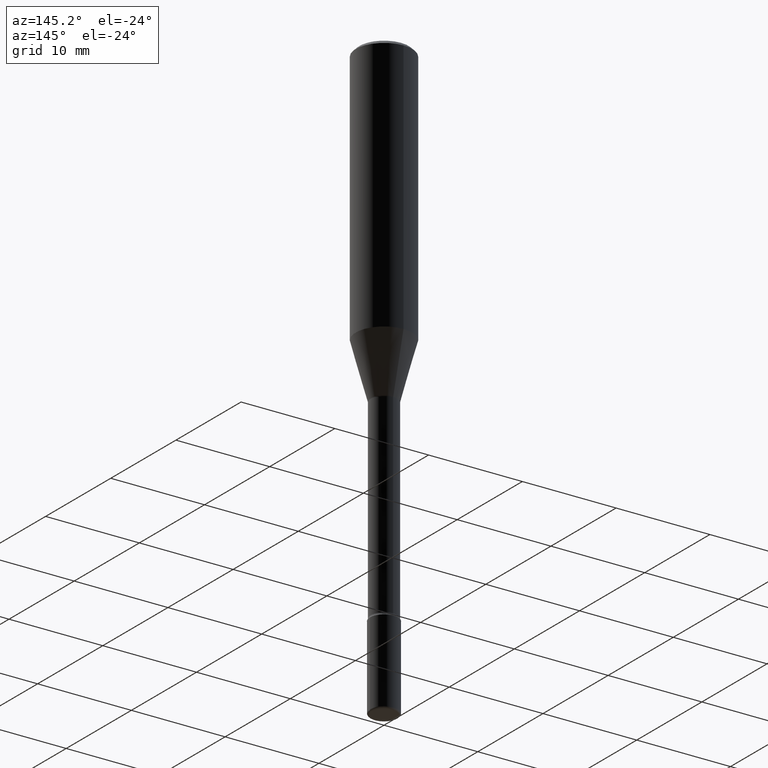
[diagram: clean part render]
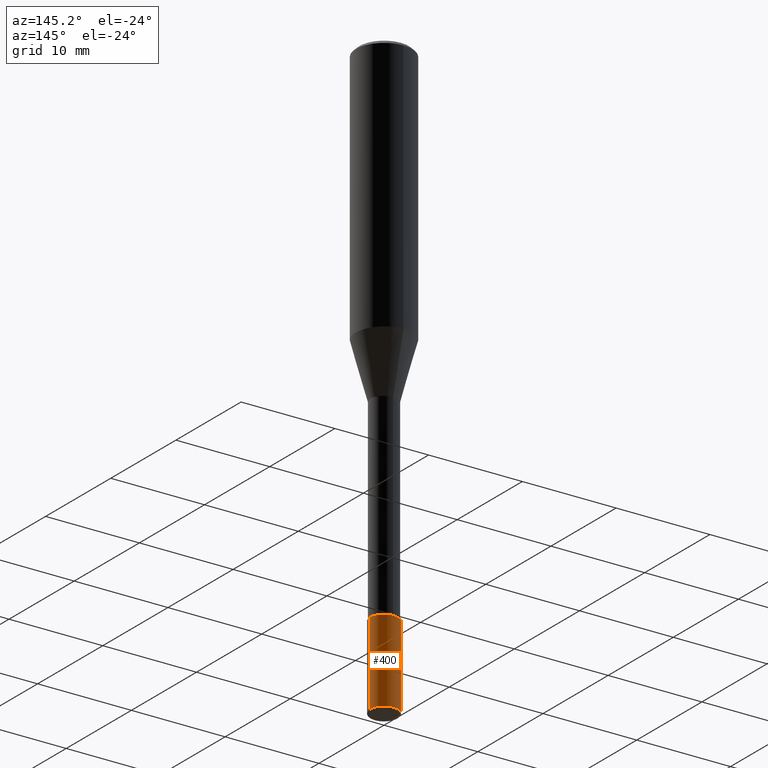
[diagram: same view with one face highlighted and labeled with its STEP entity id]
A machine part, auxiliary view. The second image highlights one B-rep face of the part: STEP entity #400.
In plain terms, the highlighted cylindrical surface (edge-blend (fillet) strip) has radius 1.4999 mm, axis along (-0, 0, 1).
Its self-contained STEP definition (entity closure, byte-faithful):
#7 = VERTEX_POINT ( 'NONE', #312 ) ;
#10 = CARTESIAN_POINT ( 'NONE',  ( 0.05905000000000005383, -9.113464590648378529E-15, -2.492100000000000648 ) ) ;
#24 = CARTESIAN_POINT ( 'NONE',  ( -0.05904999999999999832, -7.676820591177032402E-15, -2.145700000000000163 ) ) ;
#26 = EDGE_CURVE ( 'NONE', #72, #250, #141, .T. ) ;
#31 = CYLINDRICAL_SURFACE ( 'NONE', #455, 0.05904999999999999832 ) ;
#52 = ORIENTED_EDGE ( 'NONE', *, *, #490, .F. ) ;
#68 = CARTESIAN_POINT ( 'NONE',  ( 6.094352811893979937E-29, -8.701120644531004397E-15, -2.492100000000000648 ) ) ;
#72 = VERTEX_POINT ( 'NONE', #227 ) ;
#76 = DIRECTION ( 'NONE',  ( 1.000000000000000000, -6.982962677686266711E-15, 4.876176775795936353E-29 ) ) ;
#80 = EDGE_CURVE ( 'NONE', #472, #7, #316, .T. ) ;
#82 = ORIENTED_EDGE ( 'NONE', *, *, #26, .T. ) ;
#85 = VECTOR ( 'NONE', #256, 39.37007874015748143 ) ;
#123 = DIRECTION ( 'NONE',  ( -2.445468806185136597E-29, 3.491481338843145583E-15, 1.000000000000000000 ) ) ;
#128 = CARTESIAN_POINT ( 'NONE',  ( 5.247242417431447608E-29, -7.491671508755737816E-15, -2.145700000000000163 ) ) ;
#141 = LINE ( 'NONE', #304, #394 ) ;
#166 = DIRECTION ( 'NONE',  ( -2.445468806185136597E-29, 3.491481338843145583E-15, 1.000000000000000000 ) ) ;
#201 = EDGE_CURVE ( 'NONE', #472, #72, #306, .T. ) ;
#209 = CARTESIAN_POINT ( 'NONE',  ( 0.000000000000000000, 0.000000000000000000, 0.000000000000000000 ) ) ;
#227 = CARTESIAN_POINT ( 'NONE',  ( -0.05905000000000005383, -8.281545159064664904E-15, -2.492100000000000648 ) ) ;
#232 = AXIS2_PLACEMENT_3D ( 'NONE', #68, #242, #410 ) ;
#242 = DIRECTION ( 'NONE',  ( -2.445468806185136597E-29, 3.491481338843145583E-15, 1.000000000000000000 ) ) ;
#250 = VERTEX_POINT ( 'NONE', #24 ) ;
#256 = DIRECTION ( 'NONE',  ( -2.445468806185136877E-29, 3.491481338843145188E-15, 1.000000000000000000 ) ) ;
#304 = CARTESIAN_POINT ( 'NONE',  ( -0.05904999999999999832, 4.195754854663391478E-16, -2.904631170795521892E-30 ) ) ;
#306 = CIRCLE ( 'NONE', #232, 0.05904999999999999832 ) ;
#312 = CARTESIAN_POINT ( 'NONE',  ( 0.05904999999999999832, -7.904015454873111947E-15, -2.145700000000000163 ) ) ;
#316 = LINE ( 'NONE', #485, #85 ) ;
#335 = FACE_OUTER_BOUND ( 'NONE', #411, .T. ) ;
#348 = DIRECTION ( 'NONE',  ( -2.445468806185136877E-29, 3.491481338843145188E-15, 1.000000000000000000 ) ) ;
#394 = VECTOR ( 'NONE', #348, 39.37007874015748143 ) ;
#400 = ADVANCED_FACE ( 'NONE', ( #335 ), #31, .T. ) ;
#410 = DIRECTION ( 'NONE',  ( 1.000000000000000000, -6.982962677686256455E-15, 0.000000000000000000 ) ) ;
#411 = EDGE_LOOP ( 'NONE', ( #512, #82, #52, #413 ) ) ;
#413 = ORIENTED_EDGE ( 'NONE', *, *, #80, .F. ) ;
#455 = AXIS2_PLACEMENT_3D ( 'NONE', #209, #123, #76 ) ;
#462 = DIRECTION ( 'NONE',  ( 1.000000000000000000, -6.982962677686273021E-15, 0.000000000000000000 ) ) ;
#472 = VERTEX_POINT ( 'NONE', #10 ) ;
#485 = CARTESIAN_POINT ( 'NONE',  ( 0.05904999999999999832, -4.123439461173740327E-16, 2.879382386107500220E-30 ) ) ;
#490 = EDGE_CURVE ( 'NONE', #7, #250, #527, .T. ) ;
#512 = ORIENTED_EDGE ( 'NONE', *, *, #201, .T. ) ;
#527 = CIRCLE ( 'NONE', #556, 0.05904999999999999832 ) ;
#556 = AXIS2_PLACEMENT_3D ( 'NONE', #128, #166, #462 ) ;